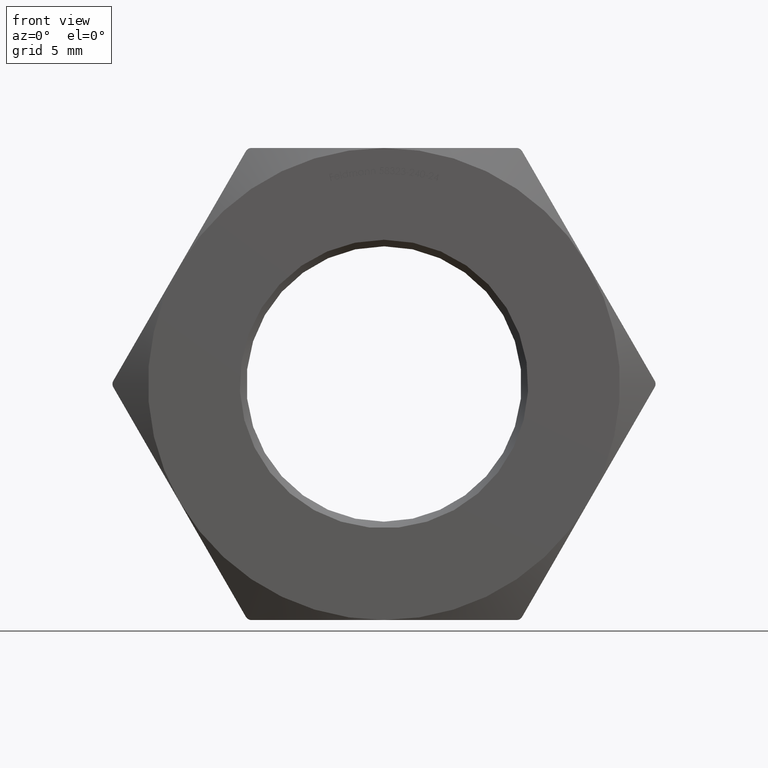
[diagram: clean part render]
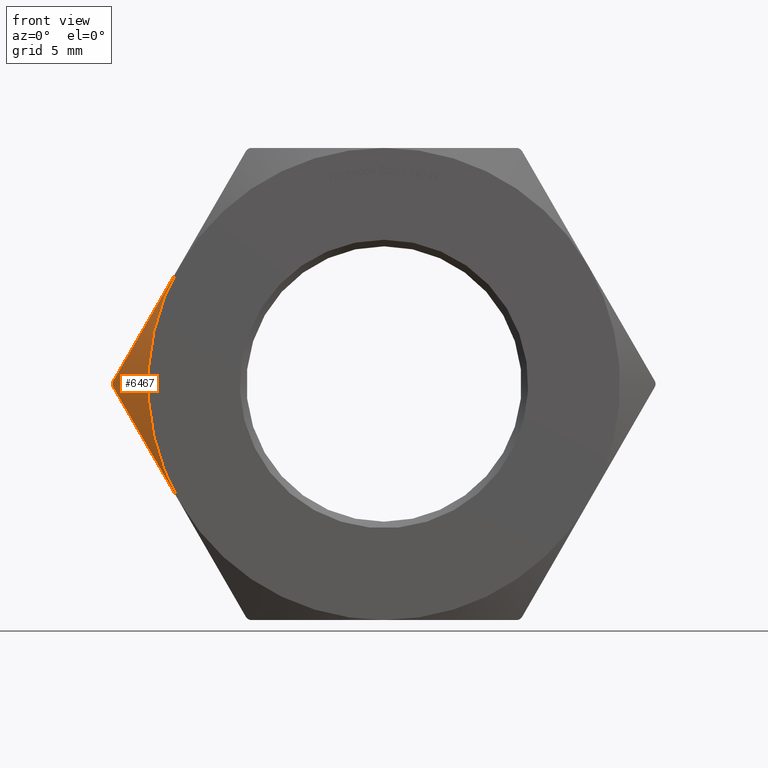
[diagram: same view with one face highlighted and labeled with its STEP entity id]
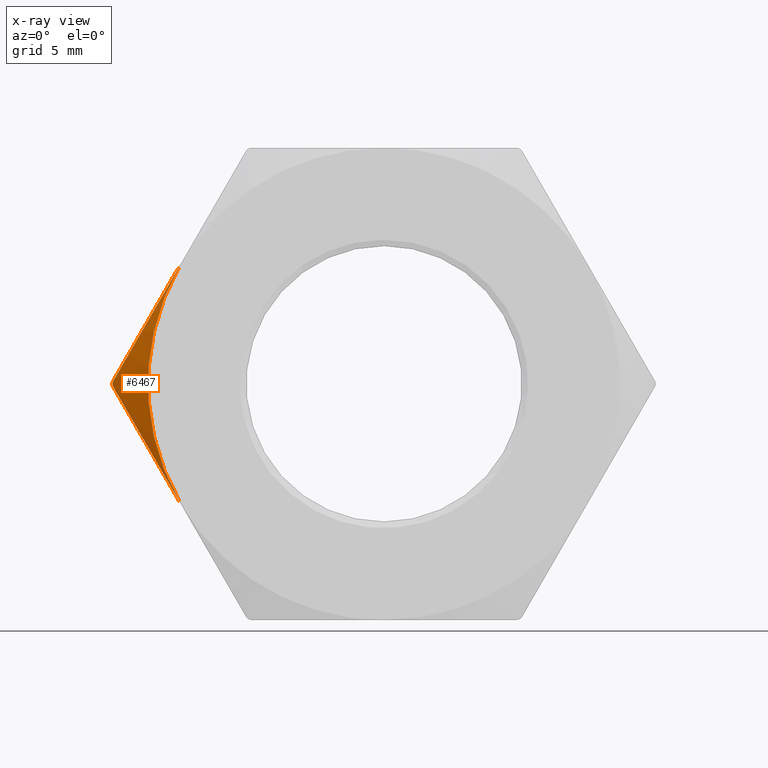
[diagram: x-ray of the same camera — body ghosted, the highlighted face saturated]
A machine part, front view. The second image highlights one B-rep face of the part: STEP entity #6467.
The next image is the same camera in x-ray: the body ghosted, the highlighted face saturated — about 0% of this face is hidden behind the body in this view.
In plain terms, the highlighted conical surface has half-angle 60 deg.
Its self-contained STEP definition (entity closure, byte-faithful):
#49 = EDGE_LOOP ( 'NONE', ( #8128, #15376, #342, #1422 ) ) ;
#342 = ORIENTED_EDGE ( 'NONE', *, *, #1618, .F. ) ;
#614 = VERTEX_POINT ( 'NONE', #13413 ) ;
#803 = CARTESIAN_POINT ( 'NONE',  ( -16.44868394276425505, -5.000000000000003553, 7.510043693489953931 ) ) ;
#814 = CARTESIAN_POINT ( 'NONE',  ( -16.01798673103118986, -4.991100823725132862, -8.256033146889855345 ) ) ;
#860 = CARTESIAN_POINT ( 'NONE',  ( -20.64027212352925744, -3.474764084930035857, 0.2499999999997561118 ) ) ;
#1422 = ORIENTED_EDGE ( 'NONE', *, *, #14786, .F. ) ;
#1618 = EDGE_CURVE ( 'NONE', #15265, #8123, #2264, .T. ) ;
#2204 = CARTESIAN_POINT ( 'NONE',  ( -15.58845726811989429, -5.000000000000000000, -8.999999999999998224 ) ) ;
#2249 = CARTESIAN_POINT ( 'NONE',  ( -20.68316535159769742, -3.450520979621841011, 0.1757067496845737264 ) ) ;
#2264 = B_SPLINE_CURVE_WITH_KNOTS ( 'NONE', 3,
 ( #2204, #11110, #814, #14724, #12267, #13393, #16144, #8607, #5870, #9661 ),
 .UNSPECIFIED., .F., .F.,
 ( 4, 2, 2, 2, 4 ),
 ( 0.01051554819734979405, 0.01178791190731938270, 0.01306027561728896787, 0.01560500303722813994, 0.02069445787710647716 ),
 .UNSPECIFIED. ) ;
#2625 = CARTESIAN_POINT ( 'NONE',  ( 9.549475979406495715E-17, -5.000000000000000000, 0.000000000000000000 ) ) ;
#3803 = DIRECTION ( 'NONE',  ( -1.909895195881299143E-17, 1.000000000000000000, -0.000000000000000000 ) ) ;
#4573 = B_SPLINE_CURVE_WITH_KNOTS ( 'NONE', 3,
 ( #860, #2249, #11041, #7370, #16132, #13589 ),
 .UNSPECIFIED., .F., .F.,
 ( 4, 2, 4 ),
 ( 2.746530905111593069E-16, 0.0002639256828971733035, 0.0005278513657940719786 ),
 .UNSPECIFIED. ) ;
#5243 = CONICAL_SURFACE ( 'NONE', #13814, 18.00000000000000000, 1.047197551196603404 ) ;
#5332 = DIRECTION ( 'NONE',  ( 1.000000000000000000, 0.000000000000000000, 0.000000000000000000 ) ) ;
#5722 = VERTEX_POINT ( 'NONE', #7434 ) ;
#5850 = CARTESIAN_POINT ( 'NONE',  ( -18.98092775833401546, -4.325605780329642158, 3.124068747771047150 ) ) ;
#5870 = CARTESIAN_POINT ( 'NONE',  ( -19.81562494357227777, -3.940851841110034393, -1.678330814003637483 ) ) ;
#6244 = B_SPLINE_CURVE_WITH_KNOTS ( 'NONE', 3,
 ( #10939, #12098, #5850, #8378, #803, #12155 ),
 .UNSPECIFIED., .F., .F.,
 ( 4, 2, 4 ),
 ( 0.0002977047320976027901, 0.005406626464723699940, 0.01051554819734979752 ),
 .UNSPECIFIED. ) ;
#6467 = ADVANCED_FACE ( 'NONE', ( #8207 ), #5243, .T. ) ;
#7312 = AXIS2_PLACEMENT_3D ( 'NONE', #9557, #15763, #8341 ) ;
#7370 = CARTESIAN_POINT ( 'NONE',  ( -20.70733949605147473, -3.436917929465525212, -0.08769794612803137601 ) ) ;
#7434 = CARTESIAN_POINT ( 'NONE',  ( -15.58845726811989429, -5.000000000000000000, 9.000000000000000000 ) ) ;
#8123 = VERTEX_POINT ( 'NONE', #14091 ) ;
#8128 = ORIENTED_EDGE ( 'NONE', *, *, #12246, .F. ) ;
#8181 = CIRCLE ( 'NONE', #7312, 17.99999999999999645 ) ;
#8207 = FACE_OUTER_BOUND ( 'NONE', #49, .T. ) ;
#8341 = DIRECTION ( 'NONE',  ( 0.000000000000000000, 0.000000000000000000, 1.000000000000000000 ) ) ;
#8378 = CARTESIAN_POINT ( 'NONE',  ( -17.29852708824104468, -4.855426502465721050, 6.038072187059994711 ) ) ;
#8607 = CARTESIAN_POINT ( 'NONE',  ( -18.98413308608382621, -4.324295589834002307, -3.118516957253466337 ) ) ;
#9557 = CARTESIAN_POINT ( 'NONE',  ( 9.549475979406495715E-17, -5.000000000000000000, 5.954463929516699050E-16 ) ) ;
#9661 = CARTESIAN_POINT ( 'NONE',  ( -20.64027212352911889, -3.474764084930114905, -0.2499999999999978351 ) ) ;
#10939 = CARTESIAN_POINT ( 'NONE',  ( -20.64027212352925744, -3.474764084930035857, 0.2499999999997561118 ) ) ;
#11041 = CARTESIAN_POINT ( 'NONE',  ( -20.70717893252963648, -3.437008392479885543, 0.08860865200605319569 ) ) ;
#11110 = CARTESIAN_POINT ( 'NONE',  ( -15.80269449085430722, -5.000000000000000888, -8.628930245351547512 ) ) ;
#12098 = CARTESIAN_POINT ( 'NONE',  ( -19.81360279745487318, -3.941994751156223220, 1.681833273819301589 ) ) ;
#12155 = CARTESIAN_POINT ( 'NONE',  ( -15.58845726811989429, -5.000000000000000000, 9.000000000000000000 ) ) ;
#12246 = EDGE_CURVE ( 'NONE', #614, #5722, #6244, .T. ) ;
#12267 = CARTESIAN_POINT ( 'NONE',  ( -16.66031262789973511, -4.929390122363204618, -7.143492058496288877 ) ) ;
#12586 = CARTESIAN_POINT ( 'NONE',  ( -15.58845726811989429, -5.000000000000000000, -8.999999999999998224 ) ) ;
#13393 = CARTESIAN_POINT ( 'NONE',  ( -17.29911597758647446, -4.825147480787584264, -6.037052200793663559 ) ) ;
#13413 = CARTESIAN_POINT ( 'NONE',  ( -20.64027212352925744, -3.474764084930035857, 0.2499999999997561118 ) ) ;
#13589 = CARTESIAN_POINT ( 'NONE',  ( -20.64027212352911889, -3.474764084930114905, -0.2499999999999978351 ) ) ;
#13722 = EDGE_CURVE ( 'NONE', #614, #8123, #4573, .T. ) ;
#13814 = AXIS2_PLACEMENT_3D ( 'NONE', #2625, #3803, #5332 ) ;
#14091 = CARTESIAN_POINT ( 'NONE',  ( -20.64027212352911889, -3.474764084930114905, -0.2499999999999978351 ) ) ;
#14724 = CARTESIAN_POINT ( 'NONE',  ( -16.44668568854905288, -4.955776413173641259, -7.513504771317093933 ) ) ;
#14786 = EDGE_CURVE ( 'NONE', #5722, #15265, #8181, .T. ) ;
#15265 = VERTEX_POINT ( 'NONE', #12586 ) ;
#15376 = ORIENTED_EDGE ( 'NONE', *, *, #13722, .T. ) ;
#15763 = DIRECTION ( 'NONE',  ( -0.000000000000000000, -1.000000000000000000, -0.000000000000000000 ) ) ;
#16132 = CARTESIAN_POINT ( 'NONE',  ( -20.68318184697179163, -3.450511656493093327, -0.1756781788588816506 ) ) ;
#16144 = CARTESIAN_POINT ( 'NONE',  ( -17.72221016899749202, -4.722150001668016905, -5.304231564882512906 ) ) ;